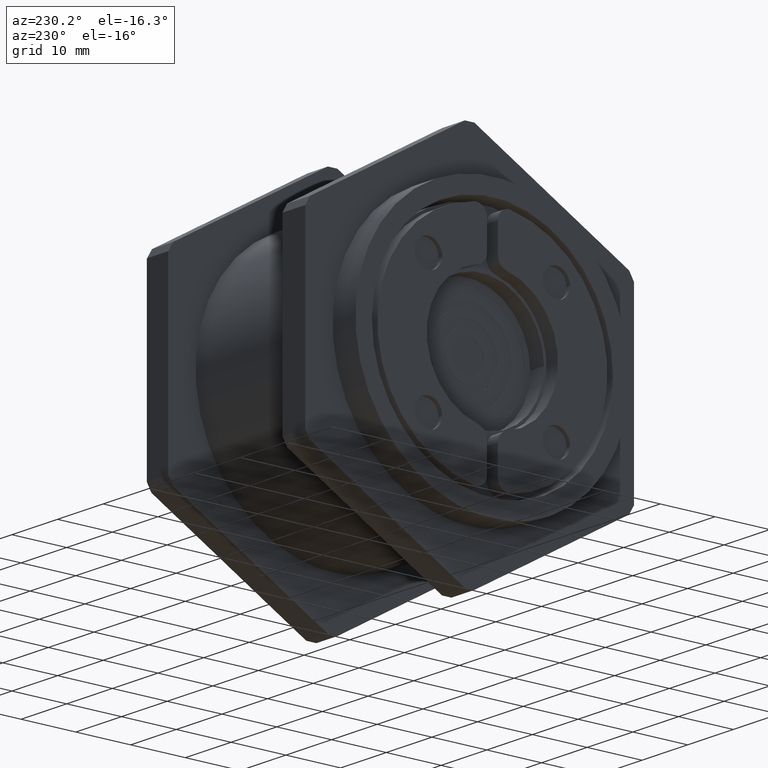
[diagram: clean part render]
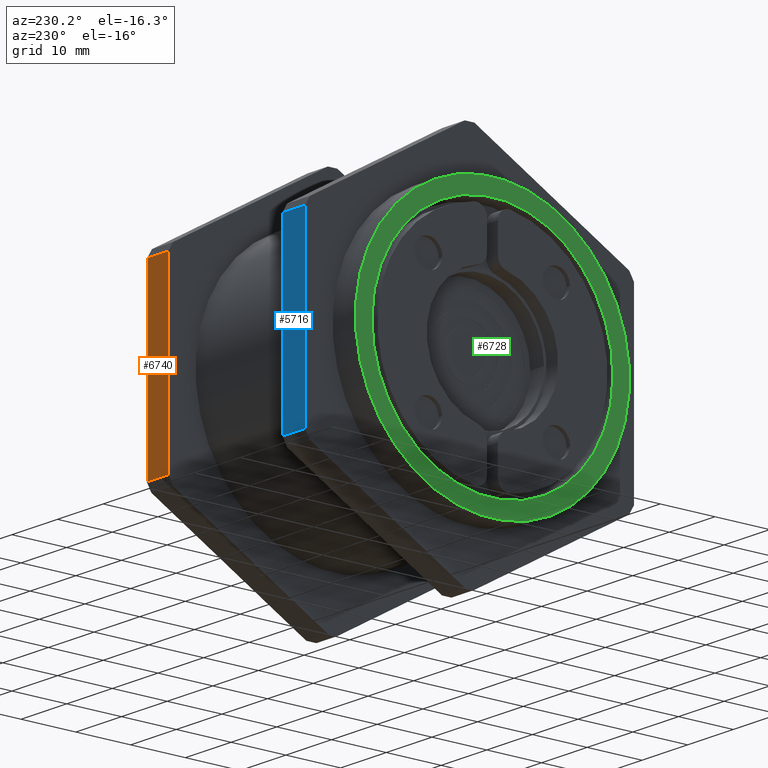
[diagram: same view with three faces highlighted in distinct colors, each labeled with its STEP entity id]
A machine part, auxiliary view with three faces highlighted in distinct colors.
Their STEP definitions:

[orange] entity #6740 — the highlighted planar face has unit normal (0, 1, 0).
#5450=CARTESIAN_POINT('',(-7.999829637181296,33.201833288376065,0.500000000000000));
#5451=VERTEX_POINT('',#5450);
#5459=CARTESIAN_POINT('',(23.528971025270671,24.753717274621280,0.500000000000000));
#5460=VERTEX_POINT('',#5459);
#5461=CARTESIAN_POINT('',(-7.999829637181296,33.201833288376065,0.500000000000000));
#5462=DIRECTION('',(0.965925831359920,-0.258819026177843,3.401313E-018));
#5463=VECTOR('',#5462,32.641016151377578);
#5464=LINE('',#5461,#5463);
#5465=EDGE_CURVE('',#5451,#5460,#5464,.T.);
#6562=CARTESIAN_POINT('',(-7.999829637181296,33.201833288376065,5.0));
#6563=VERTEX_POINT('',#6562);
#6570=CARTESIAN_POINT('',(-7.999829637181296,33.201833288376065,5.0));
#6571=DIRECTION('',(0.0,0.0,-1.0));
#6572=VECTOR('',#6571,4.500000000000000);
#6573=LINE('',#6570,#6572);
#6574=EDGE_CURVE('',#6563,#5451,#6573,.T.);
#6613=CARTESIAN_POINT('',(23.528971025270671,24.753717274621280,5.0));
#6614=VERTEX_POINT('',#6613);
#6621=CARTESIAN_POINT('',(-7.999829637181296,33.201833288376065,5.0));
#6622=DIRECTION('',(0.965925831359920,-0.258819026177843,0.0));
#6623=VECTOR('',#6622,32.641016151377578);
#6624=LINE('',#6621,#6623);
#6625=EDGE_CURVE('',#6563,#6614,#6624,.T.);
#6658=CARTESIAN_POINT('',(23.528971025270671,24.753717274621280,0.500000000000000));
#6659=DIRECTION('',(0.0,0.0,1.0));
#6660=VECTOR('',#6659,4.500000000000000);
#6661=LINE('',#6658,#6660);
#6662=EDGE_CURVE('',#5460,#6614,#6661,.T.);
#6729=CARTESIAN_POINT('',(-8.965755468541213,33.460652314553904,0.0));
#6730=DIRECTION('',(0.258819026177843,0.965925831359920,0.0));
#6731=DIRECTION('',(0.0,0.0,1.0));
#6732=AXIS2_PLACEMENT_3D('',#6729,#6730,#6731);
#6733=PLANE('',#6732);
#6734=ORIENTED_EDGE('',*,*,#5465,.F.);
#6735=ORIENTED_EDGE('',*,*,#6574,.F.);
#6736=ORIENTED_EDGE('',*,*,#6625,.T.);
#6737=ORIENTED_EDGE('',*,*,#6662,.F.);
#6738=EDGE_LOOP('',(#6734,#6735,#6736,#6737));
#6739=FACE_OUTER_BOUND('',#6738,.T.);
#6740=ADVANCED_FACE('',(#6739),#6733,.T.);

[blue] entity #5716 — the highlighted planar face has unit normal (0, 1, 0).
#5677=CARTESIAN_POINT('',(-7.999829637181296,33.201833288376065,30.0));
#5678=DIRECTION('',(0.258819026177843,0.965925831359920,0.0));
#5679=DIRECTION('',(0.0,0.0,1.0));
#5680=AXIS2_PLACEMENT_3D('',#5677,#5678,#5679);
#5681=PLANE('',#5680);
#5682=CARTESIAN_POINT('',(-7.999829637181296,33.201833288376065,35.0));
#5683=VERTEX_POINT('',#5682);
#5684=CARTESIAN_POINT('',(23.528971025270671,24.753717274621280,35.0));
#5685=VERTEX_POINT('',#5684);
#5686=CARTESIAN_POINT('',(-7.999829637181296,33.201833288376065,35.0));
#5687=DIRECTION('',(0.965925831359920,-0.258819026177843,0.0));
#5688=VECTOR('',#5687,32.641016151377578);
#5689=LINE('',#5686,#5688);
#5690=EDGE_CURVE('',#5683,#5685,#5689,.T.);
#5691=ORIENTED_EDGE('',*,*,#5690,.T.);
#5692=CARTESIAN_POINT('',(23.528971025270671,24.753717274621280,30.0));
#5693=VERTEX_POINT('',#5692);
#5694=CARTESIAN_POINT('',(23.528971025270671,24.753717274621280,30.0));
#5695=DIRECTION('',(0.0,0.0,1.0));
#5696=VECTOR('',#5695,5.0);
#5697=LINE('',#5694,#5696);
#5698=EDGE_CURVE('',#5693,#5685,#5697,.T.);
#5699=ORIENTED_EDGE('',*,*,#5698,.F.);
#5700=CARTESIAN_POINT('',(-7.999829637181296,33.201833288376065,30.0));
#5701=VERTEX_POINT('',#5700);
#5702=CARTESIAN_POINT('',(23.528971025270671,24.753717274621280,30.0));
#5703=DIRECTION('',(-0.965925831359920,0.258819026177843,0.0));
#5704=VECTOR('',#5703,32.641016151377578);
#5705=LINE('',#5702,#5704);
#5706=EDGE_CURVE('',#5693,#5701,#5705,.T.);
#5707=ORIENTED_EDGE('',*,*,#5706,.T.);
#5708=CARTESIAN_POINT('',(-7.999829637181296,33.201833288376065,30.0));
#5709=DIRECTION('',(0.0,0.0,1.0));
#5710=VECTOR('',#5709,5.0);
#5711=LINE('',#5708,#5710);
#5712=EDGE_CURVE('',#5701,#5683,#5711,.T.);
#5713=ORIENTED_EDGE('',*,*,#5712,.T.);
#5714=EDGE_LOOP('',(#5691,#5699,#5707,#5713));
#5715=FACE_OUTER_BOUND('',#5714,.T.);
#5716=ADVANCED_FACE('',(#5715),#5681,.T.);

[green] entity #6728 — the highlighted planar face has unit normal (1, 0, 0).
#5086=CARTESIAN_POINT('',(-22.0,-2.694134E-015,40.0));
#5087=VERTEX_POINT('',#5086);
#5103=CARTESIAN_POINT('',(22.0,2.694134E-015,40.0));
#5104=VERTEX_POINT('',#5103);
#5111=CARTESIAN_POINT('',(0.0,0.0,40.0));
#5112=DIRECTION('',(0.0,0.0,-1.0));
#5113=DIRECTION('',(-1.0,0.0,0.0));
#5114=AXIS2_PLACEMENT_3D('',#5111,#5112,#5113);
#5115=CIRCLE('',#5114,22.0);
#5116=EDGE_CURVE('',#5087,#5104,#5115,.T.);
#5642=CARTESIAN_POINT('',(-25.0,3.061516E-015,40.0));
#5643=VERTEX_POINT('',#5642);
#5659=CARTESIAN_POINT('',(25.0,3.061516E-015,40.0));
#5660=VERTEX_POINT('',#5659);
#5667=CARTESIAN_POINT('',(0.0,0.0,40.0));
#5668=DIRECTION('',(0.0,0.0,-1.0));
#5669=DIRECTION('',(-1.0,0.0,0.0));
#5670=AXIS2_PLACEMENT_3D('',#5667,#5668,#5669);
#5671=CIRCLE('',#5670,25.0);
#5672=EDGE_CURVE('',#5660,#5643,#5671,.T.);
#6115=CARTESIAN_POINT('',(0.0,0.0,40.0));
#6116=DIRECTION('',(0.0,0.0,-1.0));
#6117=DIRECTION('',(-1.0,0.0,0.0));
#6118=AXIS2_PLACEMENT_3D('',#6115,#6116,#6117);
#6119=CIRCLE('',#6118,25.0);
#6120=EDGE_CURVE('',#5643,#5660,#6119,.T.);
#6536=CARTESIAN_POINT('',(0.0,0.0,40.0));
#6537=DIRECTION('',(0.0,0.0,-1.0));
#6538=DIRECTION('',(-1.0,0.0,0.0));
#6539=AXIS2_PLACEMENT_3D('',#6536,#6537,#6538);
#6540=CIRCLE('',#6539,22.0);
#6541=EDGE_CURVE('',#5104,#5087,#6540,.T.);
#6715=CARTESIAN_POINT('',(0.0,0.0,40.0));
#6716=DIRECTION('',(0.0,0.0,-1.0));
#6717=DIRECTION('',(-1.0,0.0,0.0));
#6718=AXIS2_PLACEMENT_3D('',#6715,#6716,#6717);
#6719=PLANE('',#6718);
#6720=ORIENTED_EDGE('',*,*,#5672,.F.);
#6721=ORIENTED_EDGE('',*,*,#6120,.F.);
#6722=EDGE_LOOP('',(#6720,#6721));
#6723=FACE_OUTER_BOUND('',#6722,.T.);
#6724=ORIENTED_EDGE('',*,*,#6541,.T.);
#6725=ORIENTED_EDGE('',*,*,#5116,.T.);
#6726=EDGE_LOOP('',(#6724,#6725));
#6727=FACE_BOUND('',#6726,.T.);
#6728=ADVANCED_FACE('',(#6723,#6727),#6719,.F.);